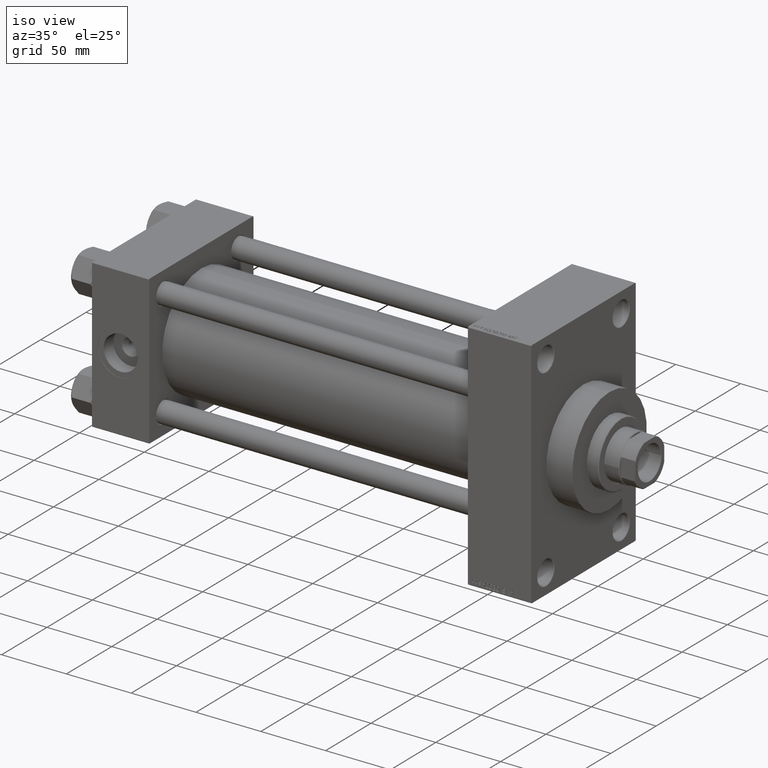
[diagram: clean part render]
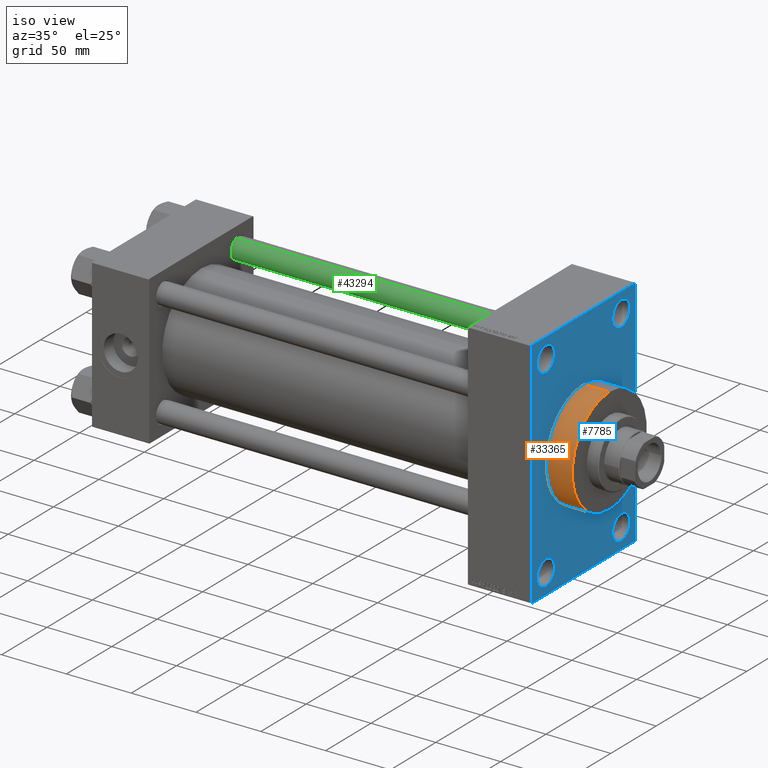
[diagram: same view with three faces highlighted in distinct colors, each labeled with its STEP entity id]
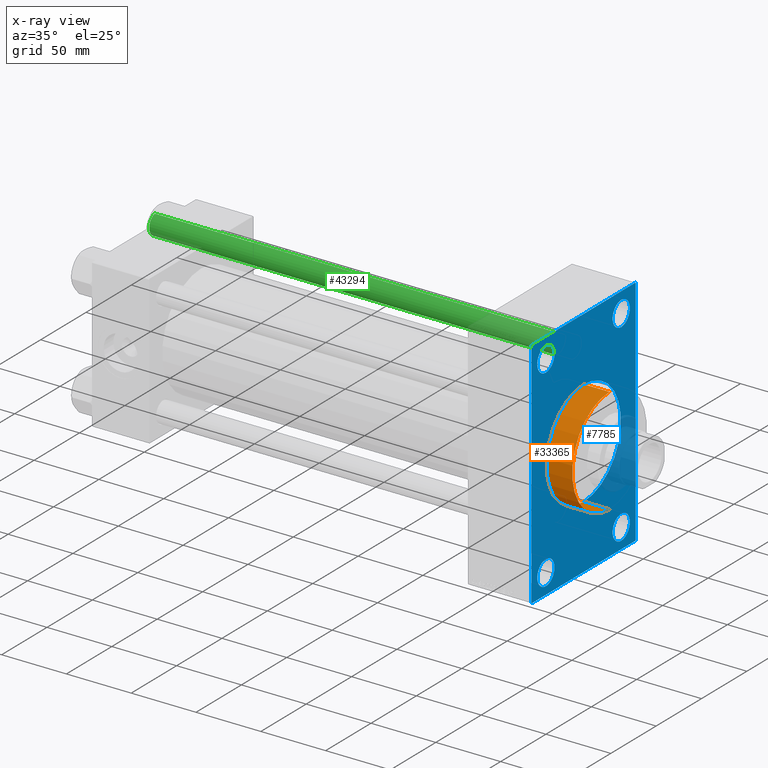
[diagram: x-ray of the same camera — body ghosted, the three highlighted faces saturated]
A machine part, iso view with three faces highlighted in distinct colors.
The next image is the same camera in x-ray (body ghosted, the three faces saturated) — at least one of them is partly hidden behind the body in this view.
Their STEP definitions:

[orange] entity #33365 — the highlighted cylindrical surface (partial cylindrical patch) has radius 41 mm, axis along (-1, -0, -0).
#833 = DIRECTION ( 'NONE',  ( -1.000000000000000000, -0.000000000000000000, -0.000000000000000000 ) ) ;
#2445 = CARTESIAN_POINT ( 'NONE',  ( 359.0000000000000000, 0.000000000000000000, 41.00000000000000000 ) ) ;
#5806 = CYLINDRICAL_SURFACE ( 'NONE', #29891, 41.00000000000000000 ) ;
#8545 = VERTEX_POINT ( 'NONE', #18309 ) ;
#9861 = EDGE_CURVE ( 'NONE', #8545, #10527, #14591, .T. ) ;
#9967 = DIRECTION ( 'NONE',  ( 0.000000000000000000, 0.000000000000000000, -1.000000000000000000 ) ) ;
#10527 = VERTEX_POINT ( 'NONE', #26497 ) ;
#10986 = CARTESIAN_POINT ( 'NONE',  ( 338.9999999999999432, 0.000000000000000000, 41.00000000000000000 ) ) ;
#14591 = LINE ( 'NONE', #37259, #19505 ) ;
#15601 = ORIENTED_EDGE ( 'NONE', *, *, #9861, .F. ) ;
#18309 = CARTESIAN_POINT ( 'NONE',  ( 359.0000000000000000, 5.021051876504148963E-15, -41.00000000000000000 ) ) ;
#19505 = VECTOR ( 'NONE', #833, 1000.000000000000000 ) ;
#19542 = FACE_OUTER_BOUND ( 'NONE', #42072, .T. ) ;
#19656 = DIRECTION ( 'NONE',  ( 0.000000000000000000, 0.000000000000000000, -1.000000000000000000 ) ) ;
#19886 = AXIS2_PLACEMENT_3D ( 'NONE', #24422, #20797, #9967 ) ;
#20797 = DIRECTION ( 'NONE',  ( 1.000000000000000000, 0.000000000000000000, 0.000000000000000000 ) ) ;
#24052 = DIRECTION ( 'NONE',  ( -1.000000000000000000, -0.000000000000000000, -0.000000000000000000 ) ) ;
#24293 = LINE ( 'NONE', #39268, #42954 ) ;
#24422 = CARTESIAN_POINT ( 'NONE',  ( 338.9999999999999432, 0.000000000000000000, 0.000000000000000000 ) ) ;
#26497 = CARTESIAN_POINT ( 'NONE',  ( 338.9999999999999432, 5.021051876504148963E-15, -41.00000000000000000 ) ) ;
#27020 = DIRECTION ( 'NONE',  ( -1.000000000000000000, -0.000000000000000000, -0.000000000000000000 ) ) ;
#27206 = VERTEX_POINT ( 'NONE', #10986 ) ;
#27261 = DIRECTION ( 'NONE',  ( 0.000000000000000000, 0.000000000000000000, 1.000000000000000000 ) ) ;
#29268 = CIRCLE ( 'NONE', #40078, 41.00000000000000000 ) ;
#29777 = EDGE_CURVE ( 'NONE', #35308, #27206, #24293, .T. ) ;
#29891 = AXIS2_PLACEMENT_3D ( 'NONE', #42230, #27020, #27261 ) ;
#33365 = ADVANCED_FACE ( 'NONE', ( #19542 ), #5806, .T. ) ;
#35002 = EDGE_CURVE ( 'NONE', #27206, #10527, #40726, .T. ) ;
#35308 = VERTEX_POINT ( 'NONE', #2445 ) ;
#35335 = CARTESIAN_POINT ( 'NONE',  ( 359.0000000000000000, 0.000000000000000000, 0.000000000000000000 ) ) ;
#36396 = ORIENTED_EDGE ( 'NONE', *, *, #35002, .T. ) ;
#36701 = ORIENTED_EDGE ( 'NONE', *, *, #37625, .F. ) ;
#37259 = CARTESIAN_POINT ( 'NONE',  ( 359.0000000000000000, 5.021051876504148963E-15, -41.00000000000000000 ) ) ;
#37625 = EDGE_CURVE ( 'NONE', #35308, #8545, #29268, .T. ) ;
#39268 = CARTESIAN_POINT ( 'NONE',  ( 359.0000000000000000, 0.000000000000000000, 41.00000000000000000 ) ) ;
#40078 = AXIS2_PLACEMENT_3D ( 'NONE', #35335, #46187, #19656 ) ;
#40726 = CIRCLE ( 'NONE', #19886, 41.00000000000000000 ) ;
#42072 = EDGE_LOOP ( 'NONE', ( #15601, #36701, #45572, #36396 ) ) ;
#42230 = CARTESIAN_POINT ( 'NONE',  ( 359.0000000000000000, 0.000000000000000000, 0.000000000000000000 ) ) ;
#42954 = VECTOR ( 'NONE', #24052, 1000.000000000000000 ) ;
#45572 = ORIENTED_EDGE ( 'NONE', *, *, #29777, .T. ) ;
#46187 = DIRECTION ( 'NONE',  ( 1.000000000000000000, 0.000000000000000000, 0.000000000000000000 ) ) ;

[blue] entity #7785 — the highlighted planar face has unit normal (-1, 0, 0).
#259 = DIRECTION ( 'NONE',  ( 0.000000000000000000, 0.7071067811865965336, -0.7071067811864985009 ) ) ;
#639 = EDGE_LOOP ( 'NONE', ( #7213, #36390 ) ) ;
#641 = CARTESIAN_POINT ( 'NONE',  ( 338.9999999999999432, 57.00000000000003553, -90.00000000000000000 ) ) ;
#978 = EDGE_CURVE ( 'NONE', #32140, #16449, #31300, .T. ) ;
#1532 = EDGE_LOOP ( 'NONE', ( #45337, #32291, #23339, #7485, #14876, #39898, #43661, #36641 ) ) ;
#1762 = CARTESIAN_POINT ( 'NONE',  ( 338.9999999999999432, 0.000000000000000000, 0.000000000000000000 ) ) ;
#1830 = CARTESIAN_POINT ( 'NONE',  ( 338.9999999999999432, 41.50000000000000711, -74.50000000000000000 ) ) ;
#2092 = CIRCLE ( 'NONE', #29036, 9.500000000000063949 ) ;
#2189 = CARTESIAN_POINT ( 'NONE',  ( 338.9999999999999432, 41.50000000000000711, -64.99999999999992895 ) ) ;
#2809 = DIRECTION ( 'NONE',  ( 0.000000000000000000, 0.000000000000000000, 1.000000000000000000 ) ) ;
#2863 = CIRCLE ( 'NONE', #36778, 9.499999999999896971 ) ;
#3000 = VECTOR ( 'NONE', #39160, 1000.000000000000000 ) ;
#3406 = ORIENTED_EDGE ( 'NONE', *, *, #27698, .T. ) ;
#3464 = VECTOR ( 'NONE', #4639, 1000.000000000000000 ) ;
#3661 = CIRCLE ( 'NONE', #39837, 9.500000000000063949 ) ;
#3690 = EDGE_CURVE ( 'NONE', #8066, #8736, #35312, .T. ) ;
#4007 = EDGE_CURVE ( 'NONE', #10527, #27206, #40957, .T. ) ;
#4639 = DIRECTION ( 'NONE',  ( 0.000000000000000000, 0.000000000000000000, -1.000000000000000000 ) ) ;
#4733 = DIRECTION ( 'NONE',  ( -1.000000000000000000, 0.000000000000000000, -0.000000000000000000 ) ) ;
#4794 = CIRCLE ( 'NONE', #33300, 9.500000000000063949 ) ;
#4821 = VERTEX_POINT ( 'NONE', #12373 ) ;
#5043 = LINE ( 'NONE', #26966, #16776 ) ;
#5250 = ORIENTED_EDGE ( 'NONE', *, *, #4007, .F. ) ;
#5302 = CARTESIAN_POINT ( 'NONE',  ( 338.9999999999999432, 57.49999999999997868, -90.00000000000000000 ) ) ;
#5452 = CARTESIAN_POINT ( 'NONE',  ( 338.9999999999999432, 57.49999999999997158, 89.99999999999998579 ) ) ;
#6179 = VECTOR ( 'NONE', #46860, 1000.000000000000000 ) ;
#6306 = CARTESIAN_POINT ( 'NONE',  ( 338.9999999999999432, -41.49999999999999289, -65.00000000000008527 ) ) ;
#7213 = ORIENTED_EDGE ( 'NONE', *, *, #28680, .T. ) ;
#7485 = ORIENTED_EDGE ( 'NONE', *, *, #35006, .T. ) ;
#7785 = ADVANCED_FACE ( 'NONE', ( #16502, #19865, #19628, #38463, #34347, #46159 ), #23487, .F. ) ;
#8066 = VERTEX_POINT ( 'NONE', #27771 ) ;
#8477 = LINE ( 'NONE', #15480, #3464 ) ;
#8736 = VERTEX_POINT ( 'NONE', #30560 ) ;
#9074 = VERTEX_POINT ( 'NONE', #35318 ) ;
#9366 = ORIENTED_EDGE ( 'NONE', *, *, #42801, .T. ) ;
#9374 = DIRECTION ( 'NONE',  ( 0.000000000000000000, -1.000000000000000000, -1.206764157201257045E-16 ) ) ;
#9471 = EDGE_LOOP ( 'NONE', ( #32546, #9366 ) ) ;
#9724 = CARTESIAN_POINT ( 'NONE',  ( 338.9999999999999432, 41.50000000000000711, 84.00000000000007105 ) ) ;
#9967 = DIRECTION ( 'NONE',  ( 0.000000000000000000, 0.000000000000000000, -1.000000000000000000 ) ) ;
#10255 = CARTESIAN_POINT ( 'NONE',  ( 338.9999999999999432, -57.50000000000002132, 89.49999999999997158 ) ) ;
#10446 = CARTESIAN_POINT ( 'NONE',  ( 338.9999999999999432, 41.50000000000000711, 64.99999999999994316 ) ) ;
#10527 = VERTEX_POINT ( 'NONE', #26497 ) ;
#10986 = CARTESIAN_POINT ( 'NONE',  ( 338.9999999999999432, 0.000000000000000000, 41.00000000000000000 ) ) ;
#12131 = CIRCLE ( 'NONE', #39097, 9.499999999999896971 ) ;
#12373 = CARTESIAN_POINT ( 'NONE',  ( 338.9999999999999432, -41.49999999999999289, -83.99999999999988631 ) ) ;
#12902 = DIRECTION ( 'NONE',  ( -1.000000000000000000, 0.000000000000000000, -0.000000000000000000 ) ) ;
#13121 = DIRECTION ( 'NONE',  ( -1.000000000000000000, 0.000000000000000000, -0.000000000000000000 ) ) ;
#13824 = CARTESIAN_POINT ( 'NONE',  ( 338.9999999999999432, 57.49999999999997868, -89.50000000000001421 ) ) ;
#14876 = ORIENTED_EDGE ( 'NONE', *, *, #3690, .F. ) ;
#15073 = VECTOR ( 'NONE', #9374, 1000.000000000000000 ) ;
#15480 = CARTESIAN_POINT ( 'NONE',  ( 338.9999999999999432, -57.50000000000002132, 89.99999999999997158 ) ) ;
#16027 = CARTESIAN_POINT ( 'NONE',  ( 338.9999999999999432, 0.000000000000000000, 0.000000000000000000 ) ) ;
#16078 = AXIS2_PLACEMENT_3D ( 'NONE', #38686, #16722, #28776 ) ;
#16449 = VERTEX_POINT ( 'NONE', #10255 ) ;
#16455 = DIRECTION ( 'NONE',  ( 1.000000000000000000, 0.000000000000000000, 0.000000000000000000 ) ) ;
#16502 = FACE_BOUND ( 'NONE', #18014, .T. ) ;
#16722 = DIRECTION ( 'NONE',  ( -1.000000000000000000, 0.000000000000000000, -0.000000000000000000 ) ) ;
#16774 = LINE ( 'NONE', #5452, #44276 ) ;
#16776 = VECTOR ( 'NONE', #259, 1000.000000000000114 ) ;
#16980 = DIRECTION ( 'NONE',  ( 0.000000000000000000, 3.854941057726238467E-17, -1.000000000000000000 ) ) ;
#16992 = DIRECTION ( 'NONE',  ( -1.000000000000000000, 0.000000000000000000, -0.000000000000000000 ) ) ;
#17169 = DIRECTION ( 'NONE',  ( 0.000000000000000000, 0.000000000000000000, -1.000000000000000000 ) ) ;
#17225 = CARTESIAN_POINT ( 'NONE',  ( 338.9999999999999432, -41.49999999999999289, 64.99999999999994316 ) ) ;
#17338 = VERTEX_POINT ( 'NONE', #10446 ) ;
#17647 = EDGE_CURVE ( 'NONE', #39861, #4821, #2863, .T. ) ;
#18014 = EDGE_LOOP ( 'NONE', ( #27942, #45982 ) ) ;
#19476 = AXIS2_PLACEMENT_3D ( 'NONE', #16027, #13121, #30961 ) ;
#19547 = DIRECTION ( 'NONE',  ( -1.000000000000000000, 0.000000000000000000, -0.000000000000000000 ) ) ;
#19628 = FACE_BOUND ( 'NONE', #9471, .T. ) ;
#19865 = FACE_BOUND ( 'NONE', #639, .T. ) ;
#19886 = AXIS2_PLACEMENT_3D ( 'NONE', #24422, #20797, #9967 ) ;
#20349 = CARTESIAN_POINT ( 'NONE',  ( 338.9999999999999432, 57.49999999999997158, 89.99999999999998579 ) ) ;
#20618 = CARTESIAN_POINT ( 'NONE',  ( 338.9999999999999432, -41.49999999999999289, 74.50000000000001421 ) ) ;
#20797 = DIRECTION ( 'NONE',  ( 1.000000000000000000, 0.000000000000000000, 0.000000000000000000 ) ) ;
#21102 = DIRECTION ( 'NONE',  ( -1.000000000000000000, 0.000000000000000000, -0.000000000000000000 ) ) ;
#21111 = VERTEX_POINT ( 'NONE', #2189 ) ;
#21661 = AXIS2_PLACEMENT_3D ( 'NONE', #1762, #16455, #17169 ) ;
#21717 = EDGE_CURVE ( 'NONE', #45544, #32140, #16774, .T. ) ;
#22201 = EDGE_CURVE ( 'NONE', #16449, #26615, #8477, .T. ) ;
#22351 = VECTOR ( 'NONE', #27443, 1000.000000000000000 ) ;
#22521 = CARTESIAN_POINT ( 'NONE',  ( 338.9999999999999432, -57.00000000000007105, 89.99999999999997158 ) ) ;
#23001 = AXIS2_PLACEMENT_3D ( 'NONE', #20618, #21102, #2809 ) ;
#23339 = ORIENTED_EDGE ( 'NONE', *, *, #24428, .F. ) ;
#23487 = PLANE ( 'NONE',  #19476 ) ;
#23758 = DIRECTION ( 'NONE',  ( 0.000000000000000000, -1.000000000000000000, -1.206764157201257291E-16 ) ) ;
#24422 = CARTESIAN_POINT ( 'NONE',  ( 338.9999999999999432, 0.000000000000000000, 0.000000000000000000 ) ) ;
#24428 = EDGE_CURVE ( 'NONE', #41929, #9074, #45806, .T. ) ;
#24693 = CARTESIAN_POINT ( 'NONE',  ( 338.9999999999999432, 41.50000000000000711, 74.50000000000001421 ) ) ;
#24991 = VERTEX_POINT ( 'NONE', #30112 ) ;
#25139 = LINE ( 'NONE', #47348, #6179 ) ;
#25190 = DIRECTION ( 'NONE',  ( -1.000000000000000000, 0.000000000000000000, -0.000000000000000000 ) ) ;
#25345 = CIRCLE ( 'NONE', #16078, 9.500000000000063949 ) ;
#26497 = CARTESIAN_POINT ( 'NONE',  ( 338.9999999999999432, 5.021051876504148963E-15, -41.00000000000000000 ) ) ;
#26615 = VERTEX_POINT ( 'NONE', #41236 ) ;
#26718 = AXIS2_PLACEMENT_3D ( 'NONE', #28813, #25190, #39928 ) ;
#26966 = CARTESIAN_POINT ( 'NONE',  ( 338.9999999999999432, -57.00000000000002132, -90.00000000000001421 ) ) ;
#27026 = DIRECTION ( 'NONE',  ( 0.000000000000000000, 0.000000000000000000, 1.000000000000000000 ) ) ;
#27206 = VERTEX_POINT ( 'NONE', #10986 ) ;
#27209 = CARTESIAN_POINT ( 'NONE',  ( 338.9999999999999432, -57.50000000000002132, 89.49999999999997158 ) ) ;
#27320 = EDGE_LOOP ( 'NONE', ( #34642, #5250 ) ) ;
#27443 = DIRECTION ( 'NONE',  ( -0.000000000000000000, -0.7071067811865131558, -0.7071067811865818786 ) ) ;
#27606 = CIRCLE ( 'NONE', #23001, 9.500000000000063949 ) ;
#27698 = EDGE_CURVE ( 'NONE', #17338, #35025, #3661, .T. ) ;
#27771 = CARTESIAN_POINT ( 'NONE',  ( 338.9999999999999432, 57.49999999999997158, 89.49999999999998579 ) ) ;
#27798 = EDGE_CURVE ( 'NONE', #28735, #21111, #2092, .T. ) ;
#27854 = EDGE_CURVE ( 'NONE', #24991, #36116, #47542, .T. ) ;
#27942 = ORIENTED_EDGE ( 'NONE', *, *, #34718, .T. ) ;
#28680 = EDGE_CURVE ( 'NONE', #4821, #39861, #12131, .T. ) ;
#28735 = VERTEX_POINT ( 'NONE', #30109 ) ;
#28776 = DIRECTION ( 'NONE',  ( 0.000000000000000000, 0.000000000000000000, 1.000000000000000000 ) ) ;
#28813 = CARTESIAN_POINT ( 'NONE',  ( 338.9999999999999432, -41.49999999999999289, 74.50000000000001421 ) ) ;
#29036 = AXIS2_PLACEMENT_3D ( 'NONE', #1830, #16992, #31703 ) ;
#29632 = EDGE_CURVE ( 'NONE', #26615, #9074, #5043, .T. ) ;
#30109 = CARTESIAN_POINT ( 'NONE',  ( 338.9999999999999432, 41.50000000000000711, -84.00000000000005684 ) ) ;
#30112 = CARTESIAN_POINT ( 'NONE',  ( 338.9999999999999432, -41.49999999999999289, 84.00000000000007105 ) ) ;
#30536 = CARTESIAN_POINT ( 'NONE',  ( 338.9999999999999432, 56.99999999999992184, 89.99999999999998579 ) ) ;
#30560 = CARTESIAN_POINT ( 'NONE',  ( 338.9999999999999432, 57.49999999999997868, -89.49999999999995737 ) ) ;
#30961 = DIRECTION ( 'NONE',  ( -0.000000000000000000, 0.000000000000000000, 1.000000000000000000 ) ) ;
#31300 = LINE ( 'NONE', #27209, #22351 ) ;
#31703 = DIRECTION ( 'NONE',  ( 0.000000000000000000, 0.000000000000000000, 1.000000000000000000 ) ) ;
#32140 = VERTEX_POINT ( 'NONE', #22521 ) ;
#32291 = ORIENTED_EDGE ( 'NONE', *, *, #29632, .T. ) ;
#32546 = ORIENTED_EDGE ( 'NONE', *, *, #27798, .T. ) ;
#33300 = AXIS2_PLACEMENT_3D ( 'NONE', #37539, #4733, #40693 ) ;
#34027 = CARTESIAN_POINT ( 'NONE',  ( 338.9999999999999432, -41.49999999999999289, -74.49999999999998579 ) ) ;
#34194 = DIRECTION ( 'NONE',  ( -1.000000000000000000, 0.000000000000000000, -0.000000000000000000 ) ) ;
#34347 = FACE_BOUND ( 'NONE', #27320, .T. ) ;
#34642 = ORIENTED_EDGE ( 'NONE', *, *, #35002, .F. ) ;
#34718 = EDGE_CURVE ( 'NONE', #36116, #24991, #27606, .T. ) ;
#35002 = EDGE_CURVE ( 'NONE', #27206, #10527, #40726, .T. ) ;
#35006 = EDGE_CURVE ( 'NONE', #41929, #8736, #46628, .T. ) ;
#35025 = VERTEX_POINT ( 'NONE', #9724 ) ;
#35055 = EDGE_CURVE ( 'NONE', #35025, #17338, #25345, .T. ) ;
#35312 = LINE ( 'NONE', #20349, #40186 ) ;
#35318 = CARTESIAN_POINT ( 'NONE',  ( 338.9999999999999432, -57.00000000000002132, -90.00000000000001421 ) ) ;
#36116 = VERTEX_POINT ( 'NONE', #17225 ) ;
#36390 = ORIENTED_EDGE ( 'NONE', *, *, #17647, .T. ) ;
#36641 = ORIENTED_EDGE ( 'NONE', *, *, #978, .T. ) ;
#36778 = AXIS2_PLACEMENT_3D ( 'NONE', #34027, #19547, #27026 ) ;
#37371 = CARTESIAN_POINT ( 'NONE',  ( 338.9999999999999432, -41.49999999999999289, -74.49999999999998579 ) ) ;
#37539 = CARTESIAN_POINT ( 'NONE',  ( 338.9999999999999432, 41.50000000000000711, -74.50000000000000000 ) ) ;
#37601 = DIRECTION ( 'NONE',  ( 0.000000000000000000, 0.000000000000000000, 1.000000000000000000 ) ) ;
#38008 = EDGE_CURVE ( 'NONE', #8066, #45544, #25139, .T. ) ;
#38463 = FACE_BOUND ( 'NONE', #43197, .T. ) ;
#38686 = CARTESIAN_POINT ( 'NONE',  ( 338.9999999999999432, 41.50000000000000711, 74.50000000000001421 ) ) ;
#39097 = AXIS2_PLACEMENT_3D ( 'NONE', #37371, #34194, #37601 ) ;
#39160 = DIRECTION ( 'NONE',  ( -0.000000000000000000, 0.7071067811865181518, 0.7071067811865769936 ) ) ;
#39837 = AXIS2_PLACEMENT_3D ( 'NONE', #24693, #12902, #42338 ) ;
#39861 = VERTEX_POINT ( 'NONE', #6306 ) ;
#39898 = ORIENTED_EDGE ( 'NONE', *, *, #38008, .T. ) ;
#39928 = DIRECTION ( 'NONE',  ( 0.000000000000000000, 0.000000000000000000, 1.000000000000000000 ) ) ;
#40186 = VECTOR ( 'NONE', #16980, 1000.000000000000000 ) ;
#40693 = DIRECTION ( 'NONE',  ( 0.000000000000000000, 0.000000000000000000, 1.000000000000000000 ) ) ;
#40726 = CIRCLE ( 'NONE', #19886, 41.00000000000000000 ) ;
#40957 = CIRCLE ( 'NONE', #21661, 41.00000000000000000 ) ;
#41236 = CARTESIAN_POINT ( 'NONE',  ( 338.9999999999999432, -57.50000000000002132, -89.50000000000002842 ) ) ;
#41929 = VERTEX_POINT ( 'NONE', #641 ) ;
#42338 = DIRECTION ( 'NONE',  ( 0.000000000000000000, 0.000000000000000000, 1.000000000000000000 ) ) ;
#42801 = EDGE_CURVE ( 'NONE', #21111, #28735, #4794, .T. ) ;
#43197 = EDGE_LOOP ( 'NONE', ( #3406, #45242 ) ) ;
#43661 = ORIENTED_EDGE ( 'NONE', *, *, #21717, .T. ) ;
#44276 = VECTOR ( 'NONE', #23758, 1000.000000000000000 ) ;
#45242 = ORIENTED_EDGE ( 'NONE', *, *, #35055, .T. ) ;
#45337 = ORIENTED_EDGE ( 'NONE', *, *, #22201, .T. ) ;
#45544 = VERTEX_POINT ( 'NONE', #30536 ) ;
#45806 = LINE ( 'NONE', #5302, #15073 ) ;
#45982 = ORIENTED_EDGE ( 'NONE', *, *, #27854, .T. ) ;
#46159 = FACE_OUTER_BOUND ( 'NONE', #1532, .T. ) ;
#46628 = LINE ( 'NONE', #13824, #3000 ) ;
#46860 = DIRECTION ( 'NONE',  ( 0.000000000000000000, -0.7071067811865867636, 0.7071067811865081598 ) ) ;
#47348 = CARTESIAN_POINT ( 'NONE',  ( 338.9999999999999432, 56.99999999999992184, 89.99999999999998579 ) ) ;
#47542 = CIRCLE ( 'NONE', #26718, 9.500000000000063949 ) ;

[green] entity #43294 — the highlighted cylindrical surface (edge-blend (fillet) strip) has radius 8 mm, axis along (-1, -0, 0).
#1179 = DIRECTION ( 'NONE',  ( -0.000000000000000000, -0.000000000000000000, -1.000000000000000000 ) ) ;
#1836 = CARTESIAN_POINT ( 'NONE',  ( 8.000000000000000000, 9.797174393178825657E-16, 322.5000000000000000 ) ) ;
#3744 = EDGE_CURVE ( 'NONE', #29827, #9975, #33241, .T. ) ;
#4985 = CIRCLE ( 'NONE', #35796, 8.000000000000000000 ) ;
#7824 = FACE_OUTER_BOUND ( 'NONE', #27568, .T. ) ;
#9975 = VERTEX_POINT ( 'NONE', #34794 ) ;
#13601 = CARTESIAN_POINT ( 'NONE',  ( 0.000000000000000000, 0.000000000000000000, 0.5000000000000004441 ) ) ;
#14616 = ORIENTED_EDGE ( 'NONE', *, *, #31333, .T. ) ;
#14825 = DIRECTION ( 'NONE',  ( -1.000000000000000000, 0.000000000000000000, 0.000000000000000000 ) ) ;
#17072 = ORIENTED_EDGE ( 'NONE', *, *, #21446, .T. ) ;
#17401 = DIRECTION ( 'NONE',  ( -0.000000000000000000, -0.000000000000000000, -1.000000000000000000 ) ) ;
#21446 = EDGE_CURVE ( 'NONE', #33182, #22831, #4985, .T. ) ;
#21615 = EDGE_CURVE ( 'NONE', #33182, #9975, #28732, .T. ) ;
#22519 = CARTESIAN_POINT ( 'NONE',  ( 0.000000000000000000, 0.000000000000000000, 323.0000000000000000 ) ) ;
#22831 = VERTEX_POINT ( 'NONE', #27806 ) ;
#23099 = LINE ( 'NONE', #26490, #24541 ) ;
#24044 = ORIENTED_EDGE ( 'NONE', *, *, #3744, .T. ) ;
#24541 = VECTOR ( 'NONE', #1179, 1000.000000000000000 ) ;
#25896 = CYLINDRICAL_SURFACE ( 'NONE', #34803, 8.000000000000000000 ) ;
#26490 = CARTESIAN_POINT ( 'NONE',  ( -8.000000000000000000, 0.000000000000000000, 323.0000000000000000 ) ) ;
#27568 = EDGE_LOOP ( 'NONE', ( #41723, #17072, #14616, #24044 ) ) ;
#27806 = CARTESIAN_POINT ( 'NONE',  ( -8.000000000000000000, 0.000000000000000000, 322.5000000000000000 ) ) ;
#28307 = DIRECTION ( 'NONE',  ( -0.000000000000000000, -0.000000000000000000, 1.000000000000000000 ) ) ;
#28732 = LINE ( 'NONE', #29210, #40430 ) ;
#29210 = CARTESIAN_POINT ( 'NONE',  ( 8.000000000000000000, 9.797174393178825657E-16, 323.0000000000000000 ) ) ;
#29827 = VERTEX_POINT ( 'NONE', #36622 ) ;
#31206 = DIRECTION ( 'NONE',  ( 1.000000000000000000, 0.000000000000000000, 0.000000000000000000 ) ) ;
#31333 = EDGE_CURVE ( 'NONE', #22831, #29827, #23099, .T. ) ;
#31953 = DIRECTION ( 'NONE',  ( 1.000000000000000000, 0.000000000000000000, 0.000000000000000000 ) ) ;
#33182 = VERTEX_POINT ( 'NONE', #1836 ) ;
#33241 = CIRCLE ( 'NONE', #36320, 8.000000000000000000 ) ;
#34794 = CARTESIAN_POINT ( 'NONE',  ( 8.000000000000000000, 9.797174393178825657E-16, 0.5000000000000004441 ) ) ;
#34803 = AXIS2_PLACEMENT_3D ( 'NONE', #22519, #37260, #14825 ) ;
#35796 = AXIS2_PLACEMENT_3D ( 'NONE', #36072, #47404, #31953 ) ;
#36072 = CARTESIAN_POINT ( 'NONE',  ( 0.000000000000000000, 0.000000000000000000, 322.5000000000000000 ) ) ;
#36320 = AXIS2_PLACEMENT_3D ( 'NONE', #13601, #28307, #31206 ) ;
#36622 = CARTESIAN_POINT ( 'NONE',  ( -8.000000000000000000, 0.000000000000000000, 0.5000000000000004441 ) ) ;
#37260 = DIRECTION ( 'NONE',  ( -0.000000000000000000, -0.000000000000000000, -1.000000000000000000 ) ) ;
#40430 = VECTOR ( 'NONE', #17401, 1000.000000000000000 ) ;
#41723 = ORIENTED_EDGE ( 'NONE', *, *, #21615, .F. ) ;
#43294 = ADVANCED_FACE ( 'NONE', ( #7824 ), #25896, .T. ) ;
#47404 = DIRECTION ( 'NONE',  ( 0.000000000000000000, 0.000000000000000000, -1.000000000000000000 ) ) ;